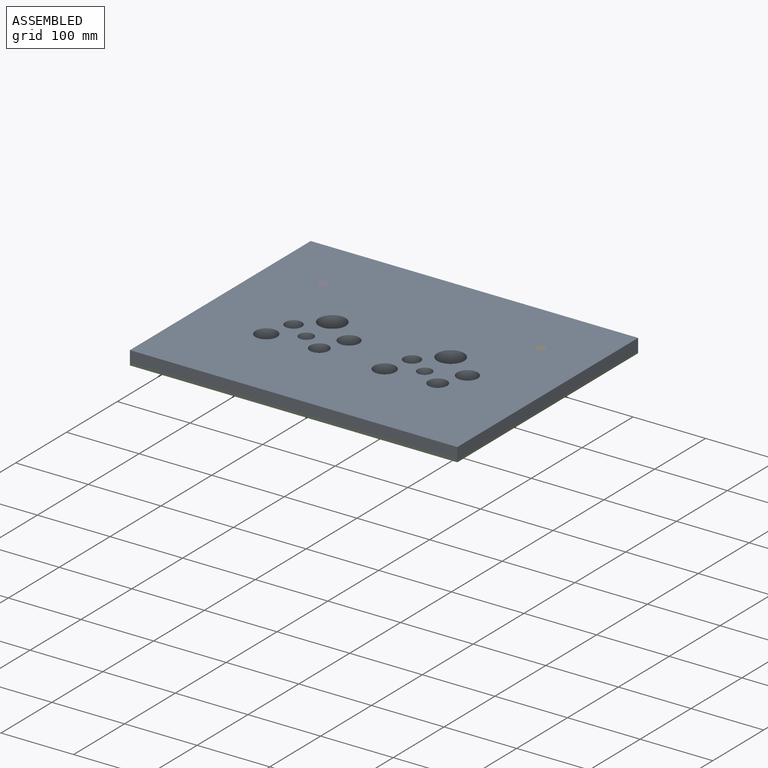
[diagram: assembled view]
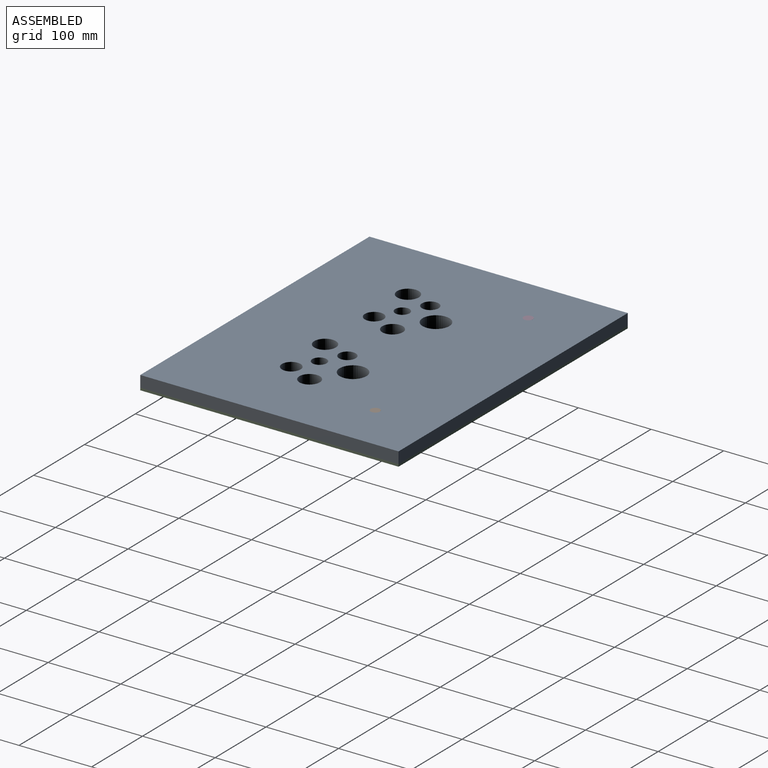
[diagram: assembled view, second angle]
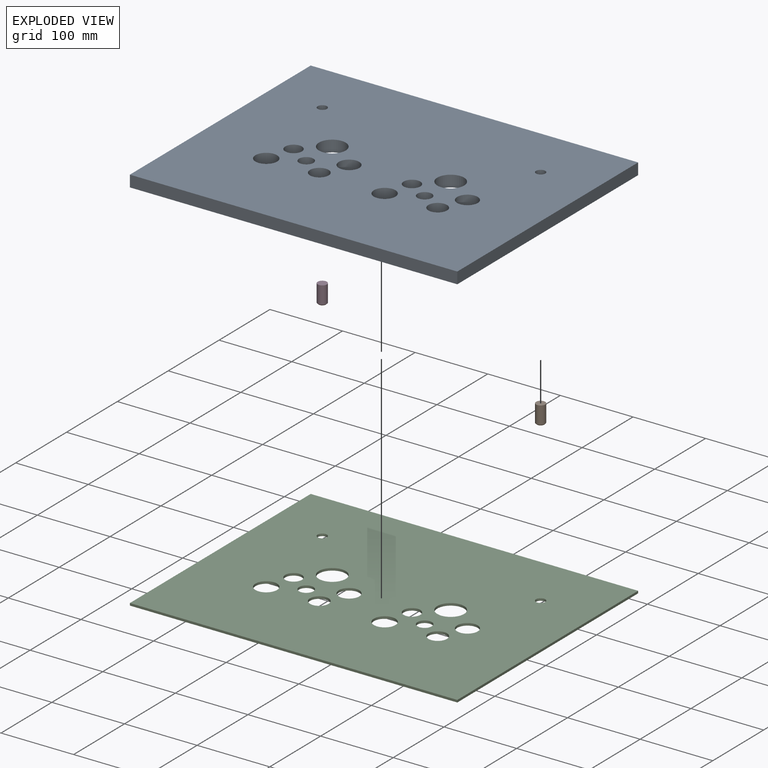
[diagram: exploded view]
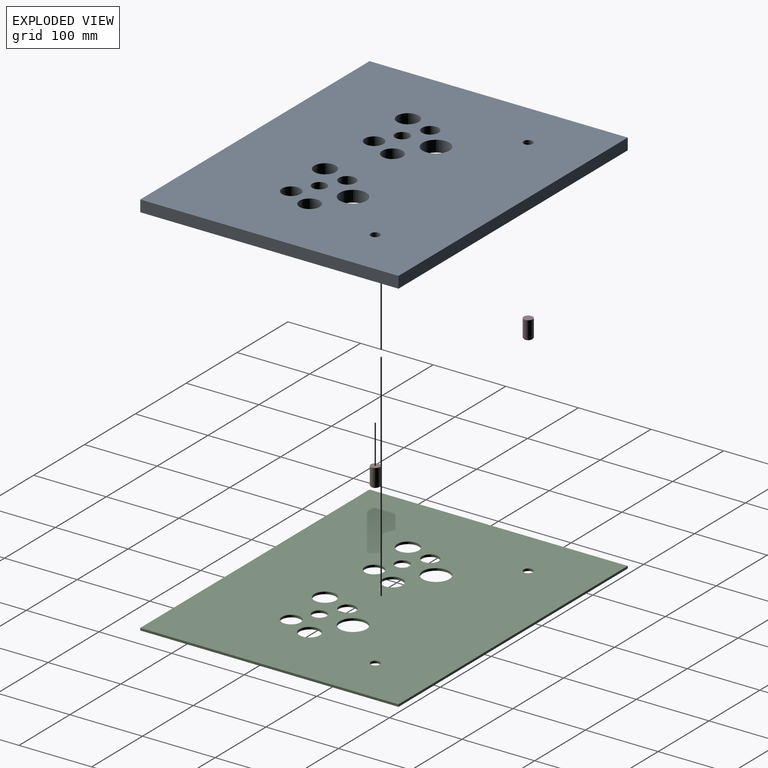
[diagram: exploded view, second angle]
ASSEMBLY  parts=4 mates=3
PART A: 20 faces, bbox 450.9x355.6x15.9 mm
  f0: plane 450.85x15.88mm, normal (0,1,0), area 7157.2mm2, adj f1,f17,f18,f19
  f1: plane 355.6x15.88mm, normal (-1,0,0), area 5645.2mm2, adj f0,f2,f18,f19
  f2: plane 450.85x15.88mm, normal (0,-1,0), area 7157.2mm2, adj f1,f17,f18,f19
  f3: extruded ~15.88x12.7mm, area 632mm2, adj f18,f19
  f4: cylinder r=14.15mm len=28.3mm, axis (0,0,-1), area 1411.2mm2, adj f18,f19
  f5: cylinder r=12.84mm len=25.68mm, axis (0,0,-1), area 1280.7mm2, adj f18,f19
  f6: cylinder r=14.88mm len=29.77mm, axis (0,0,-1), area 1484.7mm2, adj f18,f19
  f7: cylinder r=9.89mm len=19.79mm, axis (0,0,-1), area 986.8mm2, adj f18,f19
  f8: cylinder r=18.45mm len=36.9mm, axis (0,0,-1), area 1840.2mm2, adj f18,f19
  f9: cylinder r=11.49mm len=22.99mm, axis (0,0,-1), area 1146.4mm2, adj f18,f19
  f10: cylinder r=14.15mm len=28.3mm, axis (0,0,-1), area 1411.2mm2, adj f18,f19
  f11: cylinder r=12.84mm len=25.68mm, axis (0,0,-1), area 1280.7mm2, adj f18,f19
  f12: cylinder r=9.89mm len=19.79mm, axis (0,0,-1), area 986.8mm2, adj f18,f19
  f13: cylinder r=14.88mm len=29.77mm, axis (0,0,-1), area 1484.7mm2, adj f18,f19
  f14: cylinder r=11.49mm len=22.99mm, axis (0,0,-1), area 1146.4mm2, adj f18,f19
  f15: cylinder r=18.45mm len=36.9mm, axis (0,0,-1), area 1840.2mm2, adj f18,f19
  f16: extruded ~15.88x12.7mm, area 632mm2, adj f18,f19
  f17: plane 355.6x15.88mm, normal (1,0,0), area 5645.2mm2, adj f0,f2,f18,f19
  f18: plane 450.85x355.6mm, normal (0,0,1), area 152799.5mm2, adj f0,f1,f2,f3,f4,f5,f6,f7
  f19: plane 450.85x355.6mm, normal (0,0,-1), area 152799.5mm2, adj f0,f1,f2,f3,f4,f5,f6,f7
PART B: 4 faces, bbox 12.7x12.7x25.4 mm
  f0: extruded ~24.13x12.7mm, area 960.7mm2, adj f2,f3
  f1: plane 10.17x10.17mm, normal (0,0,-1), area 81.1mm2, adj f3
  f2: plane 12.7x12.7mm, normal (0,0,1), area 126.8mm2, adj f0
  f3: bspline ~12.7x12.7mm, area 64.5mm2, adj f0,f1
PART C: 20 faces, bbox 450.9x355.6x3.2 mm
  f0: plane 450.85x3.18mm, normal (0,1,0), area 1431.4mm2, adj f1,f17,f18,f19
  f1: plane 355.6x3.18mm, normal (1,0,0), area 1129mm2, adj f0,f2,f18,f19
  f2: plane 450.85x3.18mm, normal (0,-1,0), area 1431.4mm2, adj f1,f17,f18,f19
  f3: extruded ~12.7x12.7mm, area 126.4mm2, adj f18,f19
  f4: cylinder r=14.15mm len=28.3mm, axis (0,0,1), area 282.2mm2, adj f18,f19
  f5: cylinder r=12.84mm len=25.68mm, axis (0,0,1), area 256.1mm2, adj f18,f19
  f6: cylinder r=14.88mm len=29.77mm, axis (0,0,1), area 296.9mm2, adj f18,f19
  f7: cylinder r=9.89mm len=19.79mm, axis (0,0,1), area 197.4mm2, adj f18,f19
  f8: cylinder r=18.45mm len=36.9mm, axis (0,0,1), area 368mm2, adj f18,f19
  f9: cylinder r=11.49mm len=22.99mm, axis (0,0,1), area 229.3mm2, adj f18,f19
  f10: cylinder r=14.15mm len=28.3mm, axis (0,0,1), area 282.2mm2, adj f18,f19
  f11: cylinder r=12.84mm len=25.68mm, axis (0,0,1), area 256.1mm2, adj f18,f19
  f12: cylinder r=9.89mm len=19.79mm, axis (0,0,1), area 197.4mm2, adj f18,f19
  f13: cylinder r=14.88mm len=29.77mm, axis (0,0,1), area 296.9mm2, adj f18,f19
  f14: cylinder r=11.49mm len=22.99mm, axis (0,0,1), area 229.3mm2, adj f18,f19
  f15: cylinder r=18.45mm len=36.9mm, axis (0,0,1), area 368mm2, adj f18,f19
  f16: extruded ~12.7x12.7mm, area 126.4mm2, adj f18,f19
  f17: plane 355.6x3.18mm, normal (-1,0,0), area 1129mm2, adj f0,f2,f18,f19
  f18: plane 450.85x355.6mm, normal (0,0,-1), area 152799.5mm2, adj f0,f1,f2,f3,f4,f5,f6,f7
  f19: plane 450.85x355.6mm, normal (0,0,1), area 152799.5mm2, adj f0,f1,f2,f3,f4,f5,f6,f7
PART D: same geometry as B
PLACE A t=(-158.27,-95.85,-81.78)mm fixed
PLACE B t=(142.43,-95.86,-81.78)mm
PLACE C t=(-158.27,-95.85,-81.78)mm
PLACE D t=(-158.27,-95.86,-81.78)mm
MATE fastened D.f2 <-> A.f18  axis (0,0,1) through (-390.25,117.91,-65.9)mm
MATE fastened A.f18 <-> B.f2  axis (0,0,1) through (-89.55,117.91,-65.9)mm
MATE fastened A.f19 <-> C.f19  axis (0,0,-1) through (-239.89,25.4,-81.78)mm
